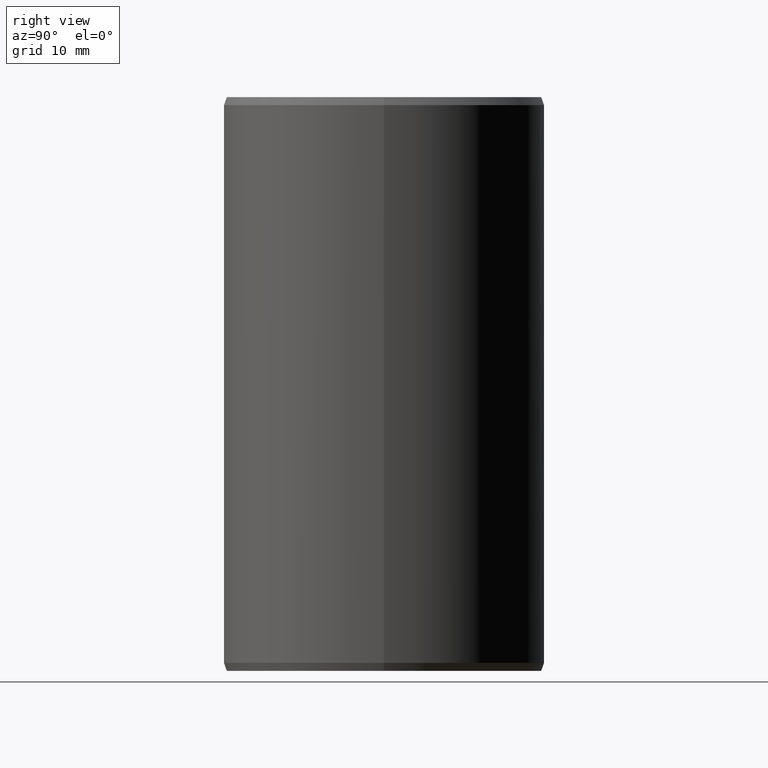
[diagram: clean part render]
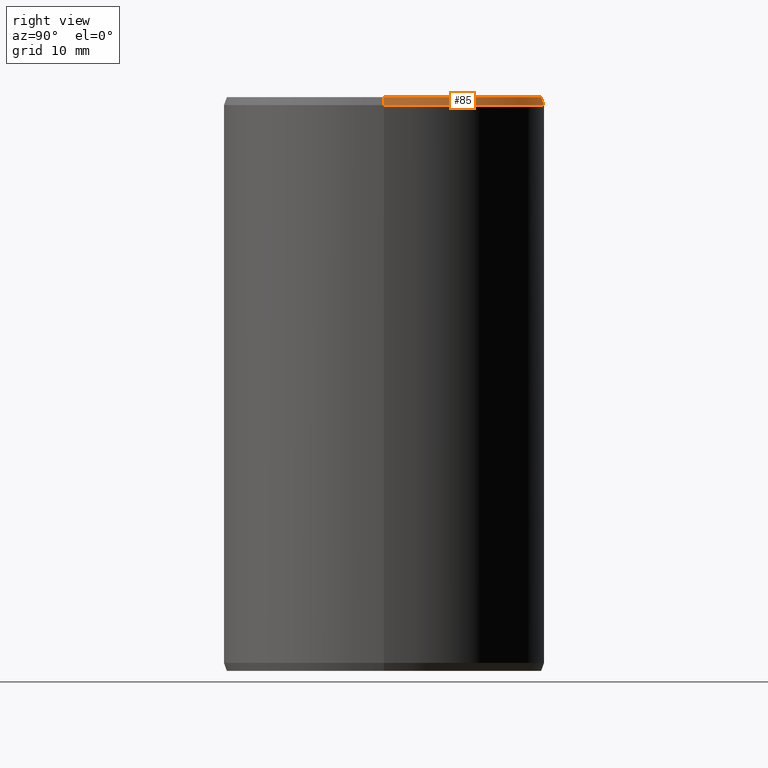
[diagram: same view with one face highlighted and labeled with its STEP entity id]
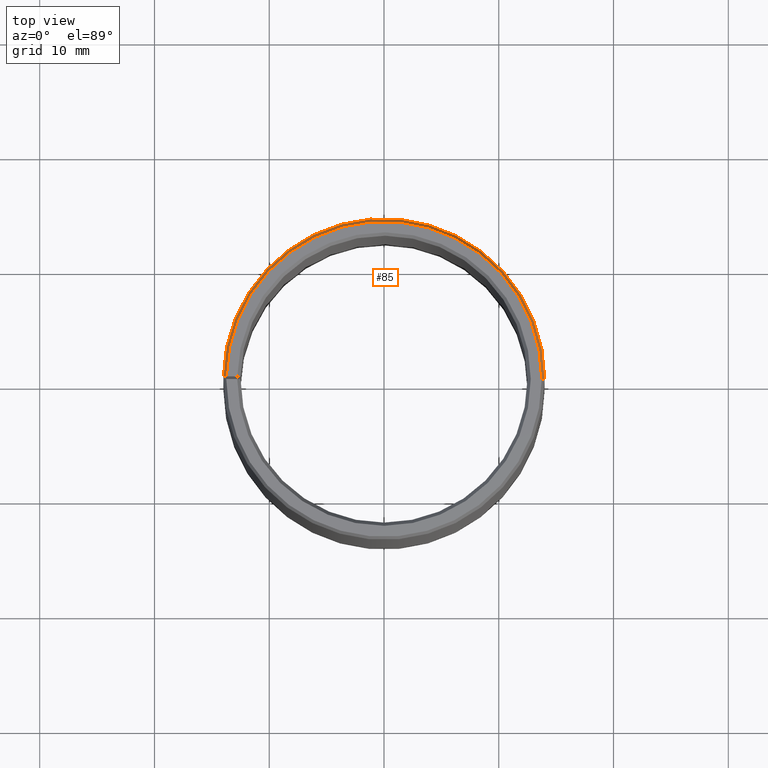
[diagram: same view with one face highlighted and labeled with its STEP entity id]
A machine part, right view. The second image highlights one B-rep face of the part: STEP entity #85.
A second angle (top view) of the same face is appended — the face is thin or edge-on in the first view.
In plain terms, the highlighted conical surface has half-angle 20 deg.
Its self-contained STEP definition (entity closure, byte-faithful):
#85=ADVANCED_FACE('',(#112),#113,.T.);
#112=FACE_OUTER_BOUND('',#144,.T.);
#113=CONICAL_SURFACE('',#145,13.8726104180068,0.349065850398878);
#144=EDGE_LOOP('',(#228,#229,#230,#231));
#145=AXIS2_PLACEMENT_3D('',#232,#233,#234);
#228=ORIENTED_EDGE('',*,*,#287,.T.);
#229=ORIENTED_EDGE('',*,*,#309,.T.);
#230=ORIENTED_EDGE('',*,*,#310,.T.);
#231=ORIENTED_EDGE('',*,*,#311,.F.);
#232=CARTESIAN_POINT('',(2.75966195842431E-014,-3.02227032259207E-014,49.65));
#233=DIRECTION('',(-5.48707263966375E-016,6.09939603923743E-016,-1.0));
#234=DIRECTION('',(-1.0,1.72118583537496E-015,5.48707263966376E-016));
#287=EDGE_CURVE('',#331,#332,#333,.T.);
#309=EDGE_CURVE('',#332,#366,#368,.T.);
#310=EDGE_CURVE('',#366,#369,#370,.T.);
#311=EDGE_CURVE('',#331,#369,#371,.T.);
#331=VERTEX_POINT('',#397);
#332=VERTEX_POINT('',#398);
#333=LINE('',#399,#400);
#366=VERTEX_POINT('',#444);
#368=CIRCLE('',#447,14.0);
#369=VERTEX_POINT('',#448);
#370=LINE('',#449,#450);
#371=CIRCLE('',#451,13.7452208360137);
#397=CARTESIAN_POINT('',(13.7452208360137,-5.57775655643813E-014,50.0));
#398=CARTESIAN_POINT('',(14.0,-5.5109262709302E-014,49.3));
#399=CARTESIAN_POINT('',(13.8726104180069,-5.57989485714922E-014,49.65));
#400=VECTOR('',#477,1.0);
#444=CARTESIAN_POINT('',(-13.9978677321895,0.244333690121963,49.3));
#447=AXIS2_PLACEMENT_3D('',#517,#518,#519);
#448=CARTESIAN_POINT('',(-13.7431273723038,0.239887180600322,50.0));
#449=CARTESIAN_POINT('',(-13.9978677321894,0.244333690121966,49.3));
#450=VECTOR('',#520,9.99999999999999);
#451=AXIS2_PLACEMENT_3D('',#521,#522,#523);
#477=DIRECTION('',(0.34202014332568,-5.74098685496278E-017,-0.939692620785904));
#517=CARTESIAN_POINT('',(2.74045720418549E-014,-3.00306556835325E-014,49.3));
#518=DIRECTION('',(5.48707263966375E-016,-6.09939603923743E-016,1.0));
#519=DIRECTION('',(-1.0,1.72118583537496E-015,5.48707263966376E-016));
#520=DIRECTION('',(0.341968052001241,-0.00596907455105893,0.939692620785904));
#521=CARTESIAN_POINT('',(2.77886671266314E-014,-3.04147507683089E-014,50.0));
#522=DIRECTION('',(5.48707263966375E-016,-6.09939603923743E-016,1.0));
#523=DIRECTION('',(-1.0,1.72118583537496E-015,5.48707263966376E-016));